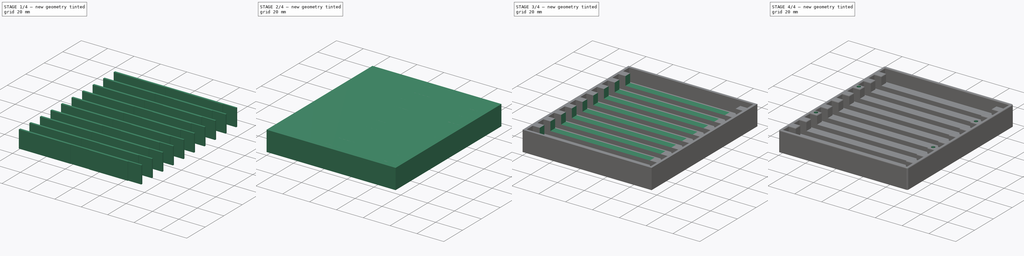
[diagram: build sequence overview — one tinted view per stage of 4, left to right]
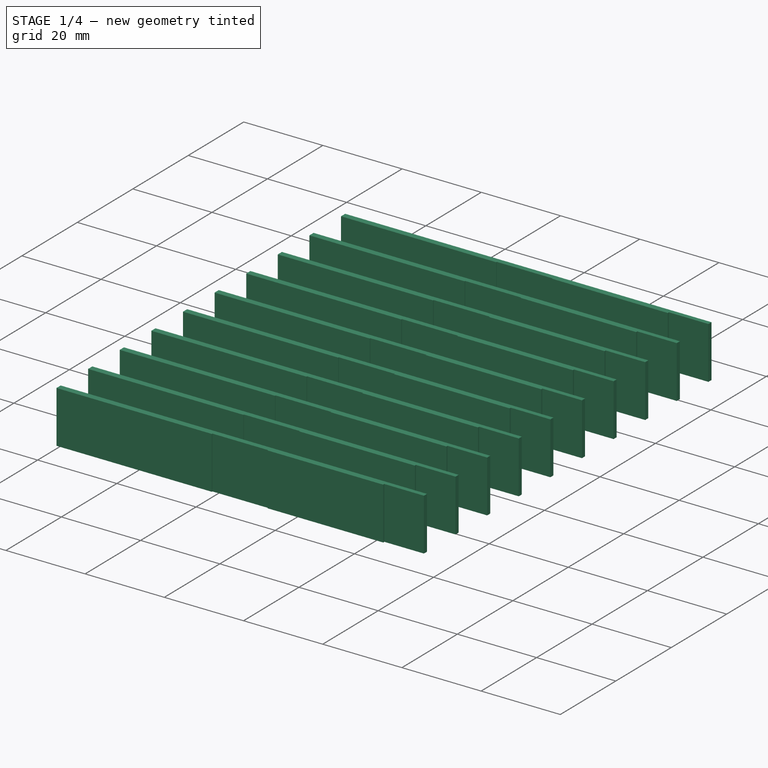
[diagram: stage 1 of 4 — iso view after this stage's code; geometry added in this stage tinted green]
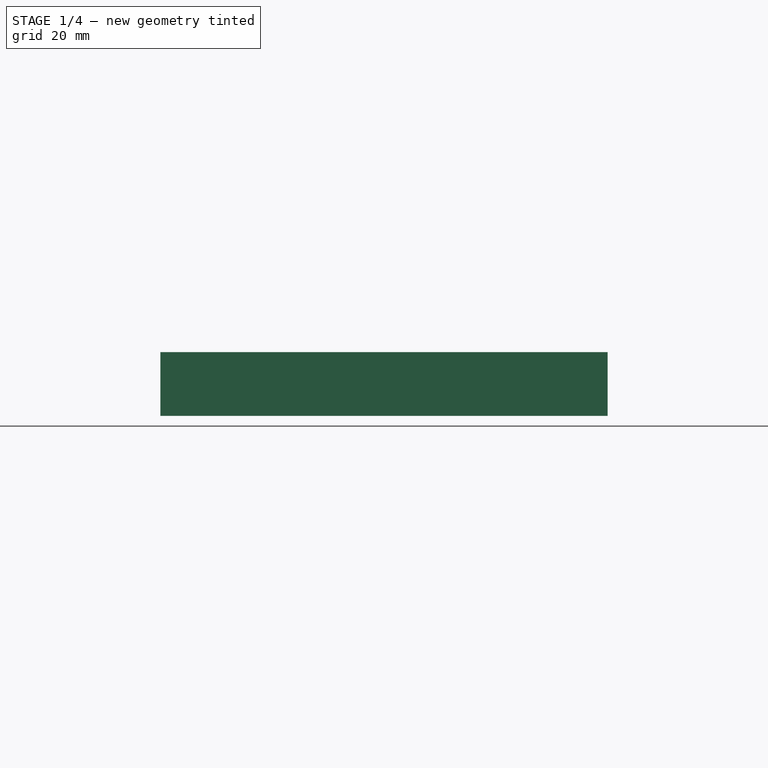
[diagram: stage 1 of 4 — front view after this stage's code; geometry added in this stage tinted green]
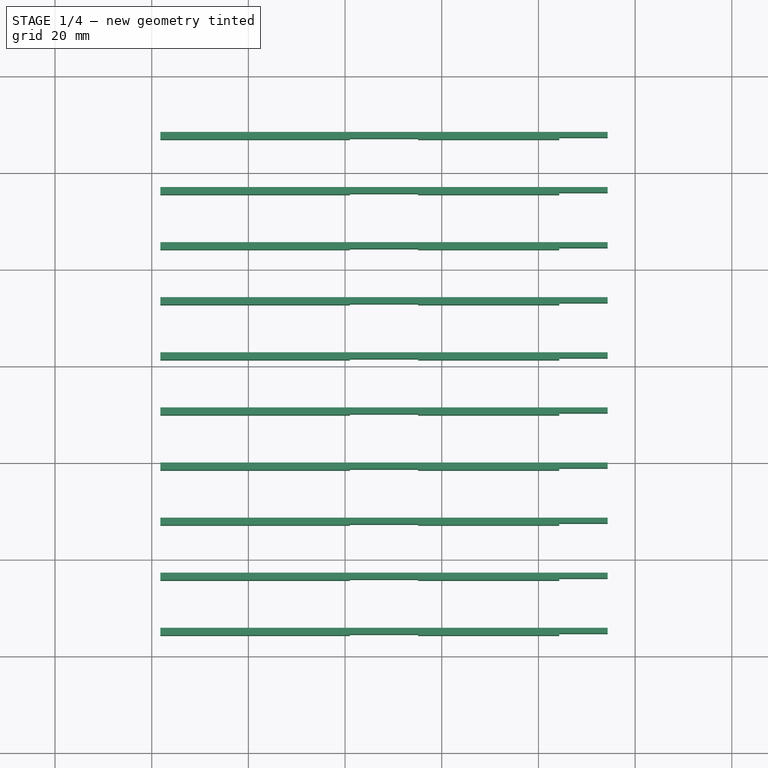
[diagram: stage 1 of 4 — top view after this stage's code; geometry added in this stage tinted green]
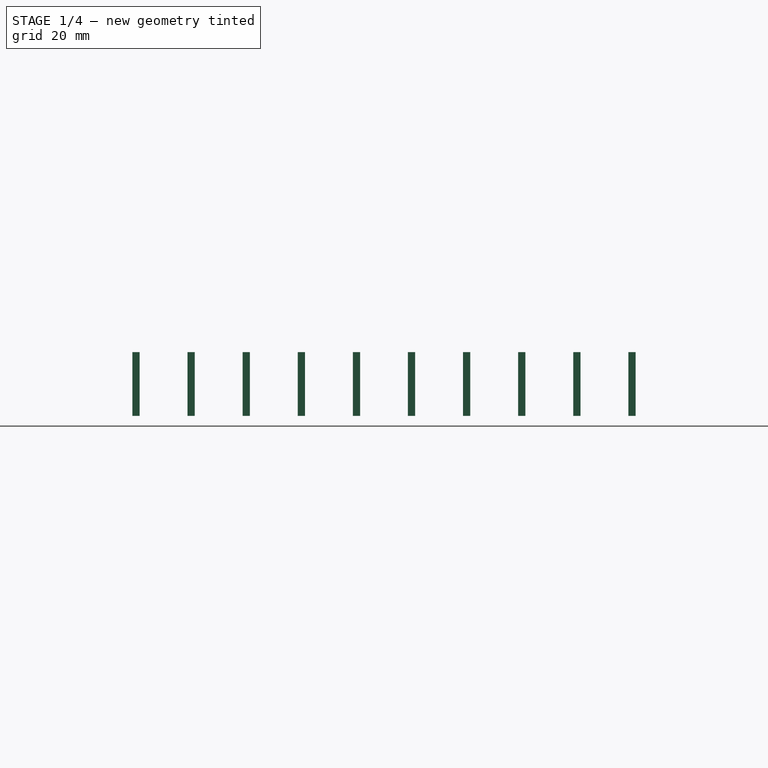
[diagram: stage 1 of 4 — right view after this stage's code; geometry added in this stage tinted green]
FCSTD DOCUMENT  (FreeCAD 0.19R)
Label: toradex-som-holder-10-slots-v2
License: All rights reserved
LicenseURL: http://en.wikipedia.org/wiki/All_rights_reserved
objects: Sketcher::SketchObject×7, Part::Extrusion×7, Part::Cut×5, Part::MultiFuse×1, Part::Fillet×1
note: 21 computed .brp shape members not serialized (recipe doc carries the construction recipe); baked Part::Feature solids carry a one-line shape summary decoded from their .brp

FEATURE [Sketcher::SketchObject] Sketch  label="BoxSketch"
  FullyConstrained = true
  sketch-geometry (4):
    g0: LineSegment StartX=0 StartY=0 StartZ=0 EndX=96.1 EndY=0 EndZ=0
    g1: LineSegment StartX=96.1 StartY=0 StartZ=0 EndX=96.1 EndY=112.6 EndZ=0
    g2: LineSegment StartX=96.1 StartY=112.6 StartZ=0 EndX=0 EndY=112.6 EndZ=0
    g3: LineSegment StartX=0 StartY=112.6 StartZ=0 EndX=0 EndY=0 EndZ=0
  constraints (11):
    c: Coincident(g0,g1)
    c: Coincident(g1,g2)
    c: Coincident(g2,g3)
    c: Coincident(g3,g0)
    c: Horizontal(g0)
    c: Horizontal(g2)
    c: Vertical(g1)
    c: Vertical(g3)
    c: Coincident(g0,g-1)
    c: Distance(g0) = 96.1  'BoxWidth'
    c: Distance(g3) = 112.6  'BoxHeight'
FEATURE [Sketcher::SketchObject] Sketch001  label="SoMSlitsSketch"
  FullyConstrained = true
  Placement = pos=(0,0,15) rot=(0,0,1;0rad)
  expr: Constraints[31] = .Constraints.BetweenGap
  expr: Constraints[11] = .Constraints.Wall
  expr: Constraints[13] = .Constraints.Wall
  expr: Constraints[32] = .Constraints.Slit
  expr: Constraints[95] = .Constraints.Wall
  expr: Constraints[33] = .Constraints.Slit
  expr: Constraints[35] = .Constraints.Wall
  expr: Constraints[37] = .Constraints.Wall
  expr: Constraints[94] = .Constraints.Wall
  expr: Constraints[113] = .Constraints.BetweenGap
  expr: Constraints[104] = .Constraints.Wall
  expr: Constraints[100] = .Constraints.Wall
  expr: Constraints[99] = .Constraints.Wall
  expr: Constraints[34] = .Constraints.Wall
  expr: Constraints[36] = .Constraints.Wall
  expr: Constraints[97] = .Constraints.Wall
  expr: Constraints[96] = .Constraints.Wall
  expr: Constraints[102] = .Constraints.Wall
  expr: Constraints[114] = .Constraints.BetweenGap
  expr: Constraints[115] = .Constraints.Slit
  expr: .Constraints.Wall = <<BoxCutSketch>>.Constraints.WallThickness
  expr: Constraints[121] = .Constraints.Slit
  expr: Constraints[103] = .Constraints.Wall
  expr: Constraints[105] = .Constraints.Wall
  expr: Constraints[106] = .Constraints.Wall
  expr: Constraints[107] = .Constraints.Wall
  expr: Constraints[108] = .Constraints.BetweenGap
  expr: Constraints[109] = .Constraints.BetweenGap
  expr: Constraints[111] = .Constraints.BetweenGap
  expr: Constraints[118] = .Constraints.Slit
  expr: Constraints[112] = .Constraints.BetweenGap
  expr: Constraints[117] = .Constraints.Slit
  expr: Constraints[101] = .Constraints.Wall
  expr: Constraints[119] = .Constraints.Slit
  expr: Constraints[116] = .Constraints.Slit
  expr: Constraints[10] = <<BoxSketch>>.Constraints.BoxWidth
  expr: Constraints[98] = .Constraints.Wall
  expr: Constraints[110] = .Constraints.BetweenGap
  expr: Constraints[120] = .Constraints.Slit
  sketch-geometry (41):
    g0: LineSegment StartX=1.8 StartY=1.8 StartZ=0 EndX=94.3 EndY=1.8 EndZ=0
    g1: LineSegment StartX=94.3 StartY=1.8 StartZ=0 EndX=94.3 EndY=8.2 EndZ=0
    g2: LineSegment StartX=94.3 StartY=8.2 StartZ=0 EndX=1.8 EndY=8.2 EndZ=0
    g3: LineSegment StartX=1.8 StartY=8.2 StartZ=0 EndX=1.8 EndY=1.8 EndZ=0
    g4: GeomPoint X=96.1 Y=0 Z=0
    g5: LineSegment StartX=1.8 StartY=13.2 StartZ=0 EndX=94.3 EndY=13.2 EndZ=0
    g6: LineSegment StartX=94.3 StartY=13.2 StartZ=0 EndX=94.3 EndY=19.6 EndZ=0
    g7: LineSegment StartX=94.3 StartY=19.6 StartZ=0 EndX=1.8 EndY=19.6 EndZ=0
    g8: LineSegment StartX=1.8 StartY=19.6 StartZ=0 EndX=1.8 EndY=13.2 EndZ=0
    g9: LineSegment StartX=1.8 StartY=31 StartZ=0 EndX=94.3 EndY=31 EndZ=0
    g10: LineSegment StartX=94.3 StartY=31 StartZ=0 EndX=94.3 EndY=24.6 EndZ=0
    g11: LineSegment StartX=94.3 StartY=24.6 StartZ=0 EndX=1.8 EndY=24.6 EndZ=0
    g12: LineSegment StartX=1.8 StartY=24.6 StartZ=0 EndX=1.8 EndY=31 EndZ=0
    g13: LineSegment StartX=1.8 StartY=42.4 StartZ=0 EndX=94.3 EndY=42.4 EndZ=0
    g14: LineSegment StartX=94.3 StartY=42.4 StartZ=0 EndX=94.3 EndY=36 EndZ=0
    g15: LineSegment StartX=94.3 StartY=36 StartZ=0 EndX=1.8 EndY=36 EndZ=0
    g16: LineSegment StartX=1.8 StartY=36 StartZ=0 EndX=1.8 EndY=42.4 EndZ=0
    g17: LineSegment StartX=1.8 StartY=53.8 StartZ=0 EndX=94.3 EndY=53.8 EndZ=0
    g18: LineSegment StartX=94.3 StartY=53.8 StartZ=0 EndX=94.3 EndY=47.4 EndZ=0
    g19: LineSegment StartX=94.3 StartY=47.4 StartZ=0 EndX=1.8 EndY=47.4 EndZ=0
    g20: LineSegment StartX=1.8 StartY=47.4 StartZ=0 EndX=1.8 EndY=53.8 EndZ=0
    g21: LineSegment StartX=1.8 StartY=65.2 StartZ=0 EndX=94.3 EndY=65.2 EndZ=0
    g22: LineSegment StartX=94.3 StartY=65.2 StartZ=0 EndX=94.3 EndY=58.8 EndZ=0
    g23: LineSegment StartX=94.3 StartY=58.8 StartZ=0 EndX=1.8 EndY=58.8 EndZ=0
    g24: LineSegment StartX=1.8 StartY=58.8 StartZ=0 EndX=1.8 EndY=65.2 EndZ=0
    g25: LineSegment StartX=1.8 StartY=76.6 StartZ=0 EndX=94.3 EndY=76.6 EndZ=0
    g26: LineSegment StartX=94.3 StartY=76.6 StartZ=0 EndX=94.3 EndY=70.2 EndZ=0
    g27: LineSegment StartX=94.3 StartY=70.2 StartZ=0 EndX=1.8 EndY=70.2 EndZ=0
    g28: LineSegment StartX=1.8 StartY=70.2 StartZ=0 EndX=1.8 EndY=76.6 EndZ=0
    g29: LineSegment StartX=1.8 StartY=88 StartZ=0 EndX=94.3 EndY=88 EndZ=0
    g30: LineSegment StartX=94.3 StartY=88 StartZ=0 EndX=94.3 EndY=81.6 EndZ=0
    g31: LineSegment StartX=94.3 StartY=81.6 StartZ=0 EndX=1.8 EndY=81.6 EndZ=0
    g32: LineSegment StartX=1.8 StartY=81.6 StartZ=0 EndX=1.8 EndY=88 EndZ=0
    g33: LineSegment StartX=1.8 StartY=99.4 StartZ=0 EndX=94.3 EndY=99.4 EndZ=0
    g34: LineSegment StartX=94.3 StartY=99.4 StartZ=0 EndX=94.3 EndY=93 EndZ=0
    g35: LineSegment StartX=94.3 StartY=93 StartZ=0 EndX=1.8 EndY=93 EndZ=0
    g36: LineSegment StartX=1.8 StartY=93 StartZ=0 EndX=1.8 EndY=99.4 EndZ=0
    g37: LineSegment StartX=1.8 StartY=110.8 StartZ=0 EndX=94.3 EndY=110.8 EndZ=0
    g38: LineSegment StartX=94.3 StartY=110.8 StartZ=0 EndX=94.3 EndY=104.4 EndZ=0
    g39: LineSegment StartX=94.3 StartY=104.4 StartZ=0 EndX=1.8 EndY=104.4 EndZ=0
    g40: LineSegment StartX=1.8 StartY=104.4 StartZ=0 EndX=1.8 EndY=110.8 EndZ=0
  constraints (122):
    c: Coincident(g0,g1)
    c: Coincident(g1,g2)
    c: Coincident(g2,g3)
    c: Coincident(g3,g0)
    c: Horizontal(g0)
    c: Horizontal(g2)
    c: Vertical(g1)
    c: Vertical(g3)
    c: DistanceX(g-1,g0) = 1.8  'Wall'
    c: PointOnObject(g4,g-1)
    c: Distance(g4,g-1) = 96.1
    c: DistanceX(g0,g4) = 1.8
    c: Distance(g3) = 6.4  'Slit'
    c: DistanceY(g-1,g0) = 1.8
    c: Coincident(g5,g6)
    c: Coincident(g6,g7)
    c: Coincident(g7,g8)
    c: Coincident(g8,g5)
    c: Horizontal(g5)
    c: Horizontal(g7)
    c: Vertical(g6)
    c: Vertical(g8)
    c: DistanceY(g2,g5) = 5  'BetweenGap'
    c: Coincident(g9,g10)
    c: Coincident(g10,g11)
    c: Coincident(g11,g12)
    c: Coincident(g12,g9)
    c: Horizontal(g9)
    c: Horizontal(g11)
    c: Vertical(g10)
    c: Vertical(g12)
    c: DistanceY(g7,g11) = 5
    c: Distance(g8) = 6.4
    c: Distance(g12) = 6.4
    c: DistanceX(g5,g4) = 1.8
    c: DistanceX(g10,g4) = 1.8
    c: DistanceX(g-1,g5) = 1.8
    c: DistanceX(g-1,g11) = 1.8
    c: Coincident(g13,g14)
    c: Coincident(g14,g15)
    c: Coincident(g15,g16)
    c: Coincident(g16,g13)
    c: Horizontal(g13)
    c: Horizontal(g15)
    c: Vertical(g14)
    c: Vertical(g16)
    c: Coincident(g17,g18)
    c: Coincident(g18,g19)
    c: Coincident(g19,g20)
    c: Coincident(g20,g17)
    c: Horizontal(g17)
    c: Horizontal(g19)
    c: Vertical(g18)
    c: Vertical(g20)
    c: Coincident(g21,g22)
    c: Coincident(g22,g23)
    c: Coincident(g23,g24)
    c: Coincident(g24,g21)
    c: Horizontal(g21)
    c: Horizontal(g23)
    c: Vertical(g22)
    c: Vertical(g24)
    c: Coincident(g25,g26)
    c: Coincident(g26,g27)
    c: Coincident(g27,g28)
    c: Coincident(g28,g25)
    c: Horizontal(g25)
    c: Horizontal(g27)
    c: Vertical(g26)
    c: Vertical(g28)
    c: Coincident(g29,g30)
    c: Coincident(g30,g31)
    c: Coincident(g31,g32)
    c: Coincident(g32,g29)
    c: Horizontal(g29)
    c: Horizontal(g31)
    c: Vertical(g30)
    c: Vertical(g32)
    c: Coincident(g33,g34)
    c: Coincident(g34,g35)
    c: Coincident(g35,g36)
    c: Coincident(g36,g33)
    c: Horizontal(g33)
    c: Horizontal(g35)
    c: Vertical(g34)
    c: Vertical(g36)
    c: Coincident(g37,g38)
    c: Coincident(g38,g39)
    c: Coincident(g39,g40)
    c: Coincident(g40,g37)
    c: Horizontal(g37)
    c: Horizontal(g39)
    c: Vertical(g38)
    c: Vertical(g40)
    c: DistanceX(g-1,g15) = 1.8
    c: DistanceX(g-1,g19) = 1.8
    c: DistanceX(g-1,g23) = 1.8
    c: DistanceX(g-1,g27) = 1.8
    c: DistanceX(g-1,g31) = 1.8
    c: DistanceX(g-1,g35) = 1.8
    c: DistanceX(g-1,g39) = 1.8
    c: DistanceX(g14,g4) = 1.8
    c: DistanceX(g18,g4) = 1.8
    c: DistanceX(g22,g4) = 1.8
    c: DistanceX(g26,g4) = 1.8
    c: DistanceX(g30,g4) = 1.8
    c: DistanceX(g34,g4) = 1.8
    c: DistanceX(g38,g4) = 1.8
    c: DistanceY(g9,g15) = 5
    c: DistanceY(g13,g19) = 5
    c: DistanceY(g17,g23) = 5
    c: DistanceY(g21,g27) = 5
    c: DistanceY(g25,g31) = 5
    c: DistanceY(g29,g35) = 5
    c: DistanceY(g33,g39) = 5
    c: Distance(g16) = 6.4
    c: Distance(g20) = 6.4
    c: Distance(g24) = 6.4
    c: Distance(g28) = 6.4
    c: Distance(g32) = 6.4
    c: Distance(g36) = 6.4
    c: Distance(g40) = 6.4
FEATURE [Sketcher::SketchObject] Sketch002  label="EdgeConnectorSlitsSketch"
  FullyConstrained = true
  Placement = pos=(0,0,15) rot=(0,0,1;0rad)
  expr: Constraints[106] = .Constraints.Wall
  expr: Constraints[105] = .Constraints.Wall
  expr: Constraints[102] = .Constraints.Wall
  expr: Constraints[34] = .Constraints.Wall
  expr: Constraints[99] = .Constraints.Wall
  expr: Constraints[36] = .Constraints.Wall
  expr: Constraints[96] = .Constraints.Wall
  expr: Constraints[97] = .Constraints.Wall
  expr: Constraints[35] = .Constraints.Wall
  expr: Constraints[33] = .Constraints.Wall
  expr: Constraints[32] = .Constraints.Slit
  expr: Constraints[95] = .Constraints.Wall
  expr: Constraints[93] = .Constraints.Wall
  expr: Constraints[11] = .Constraints.Wall
  expr: Constraints[111] = .Constraints.Slit
  expr: Constraints[104] = .Constraints.Wall
  expr: Constraints[94] = .Constraints.Wall
  expr: Constraints[113] = .Constraints.Slit
  expr: Constraints[107] = .Constraints.Slit
  expr: Constraints[108] = .Constraints.Slit
  expr: Constraints[109] = .Constraints.Slit
  expr: .Constraints.BetweenGap = Sketch001.Constraints.BetweenGap + Sketch001.Constraints.Slit
  expr: Constraints[31] = .Constraints.Slit
  expr: Constraints[100] = .Constraints.Wall
  expr: Constraints[118] = .Constraints.BetweenGap
  expr: Constraints[117] = .Constraints.BetweenGap
  expr: Constraints[112] = .Constraints.Slit
  expr: .Constraints.SlitSpacing = .Constraints.Wall + Sketch001.Constraints.Slit / 2 - .Constraints.Slit / 2
  expr: Constraints[101] = .Constraints.Wall
  expr: Constraints[119] = .Constraints.BetweenGap
  expr: Constraints[116] = .Constraints.BetweenGap
  expr: Constraints[120] = .Constraints.BetweenGap
  expr: Constraints[10] = <<BoxSketch>>.Constraints.BoxWidth
  expr: Constraints[98] = .Constraints.Wall
  expr: Constraints[110] = .Constraints.Slit
  expr: Constraints[103] = .Constraints.Wall
  expr: Constraints[121] = .Constraints.BetweenGap
  expr: .Constraints.Wall = <<BoxCutSketch>>.Constraints.WallThickness
  expr: Constraints[114] = .Constraints.BetweenGap
  expr: Constraints[115] = .Constraints.BetweenGap
  sketch-geometry (41):
    g0: LineSegment StartX=1.8 StartY=4.25 StartZ=0 EndX=94.3 EndY=4.25 EndZ=0
    g1: LineSegment StartX=94.3 StartY=4.25 StartZ=0 EndX=94.3 EndY=5.75 EndZ=0
    g2: LineSegment StartX=94.3 StartY=5.75 StartZ=0 EndX=1.8 EndY=5.75 EndZ=0
    g3: LineSegment StartX=1.8 StartY=5.75 StartZ=0 EndX=1.8 EndY=4.25 EndZ=0
    g4: GeomPoint X=96.1 Y=0 Z=0
    g5: LineSegment StartX=1.8 StartY=17.15 StartZ=0 EndX=94.3 EndY=17.15 EndZ=0
    g6: LineSegment StartX=94.3 StartY=17.15 StartZ=0 EndX=94.3 EndY=15.65 EndZ=0
    g7: LineSegment StartX=94.3 StartY=15.65 StartZ=0 EndX=1.8 EndY=15.65 EndZ=0
    g8: LineSegment StartX=1.8 StartY=15.65 StartZ=0 EndX=1.8 EndY=17.15 EndZ=0
    g9: LineSegment StartX=1.8 StartY=27.05 StartZ=0 EndX=94.3 EndY=27.05 EndZ=0
    g10: LineSegment StartX=94.3 StartY=27.05 StartZ=0 EndX=94.3 EndY=28.55 EndZ=0
    g11: LineSegment StartX=94.3 StartY=28.55 StartZ=0 EndX=1.8 EndY=28.55 EndZ=0
    g12: LineSegment StartX=1.8 StartY=28.55 StartZ=0 EndX=1.8 EndY=27.05 EndZ=0
    g13: LineSegment StartX=1.8 StartY=39.95 StartZ=0 EndX=94.3 EndY=39.95 EndZ=0
    g14: LineSegment StartX=94.3 StartY=39.95 StartZ=0 EndX=94.3 EndY=38.45 EndZ=0
    g15: LineSegment StartX=94.3 StartY=38.45 StartZ=0 EndX=1.8 EndY=38.45 EndZ=0
    g16: LineSegment StartX=1.8 StartY=38.45 StartZ=0 EndX=1.8 EndY=39.95 EndZ=0
    g17: LineSegment StartX=1.8 StartY=51.35 StartZ=0 EndX=94.3 EndY=51.35 EndZ=0
    g18: LineSegment StartX=94.3 StartY=51.35 StartZ=0 EndX=94.3 EndY=49.85 EndZ=0
    g19: LineSegment StartX=94.3 StartY=49.85 StartZ=0 EndX=1.8 EndY=49.85 EndZ=0
    g20: LineSegment StartX=1.8 StartY=49.85 StartZ=0 EndX=1.8 EndY=51.35 EndZ=0
    g21: LineSegment StartX=1.8 StartY=62.75 StartZ=0 EndX=94.3 EndY=62.75 EndZ=0
    g22: LineSegment StartX=94.3 StartY=62.75 StartZ=0 EndX=94.3 EndY=61.25 EndZ=0
    g23: LineSegment StartX=94.3 StartY=61.25 StartZ=0 EndX=1.8 EndY=61.25 EndZ=0
    g24: LineSegment StartX=1.8 StartY=61.25 StartZ=0 EndX=1.8 EndY=62.75 EndZ=0
    g25: LineSegment StartX=1.8 StartY=74.15 StartZ=0 EndX=94.3 EndY=74.15 EndZ=0
    g26: LineSegment StartX=94.3 StartY=74.15 StartZ=0 EndX=94.3 EndY=72.65 EndZ=0
    g27: LineSegment StartX=94.3 StartY=72.65 StartZ=0 EndX=1.8 EndY=72.65 EndZ=0
    g28: LineSegment StartX=1.8 StartY=72.65 StartZ=0 EndX=1.8 EndY=74.15 EndZ=0
    g29: LineSegment StartX=1.8 StartY=85.55 StartZ=0 EndX=94.3 EndY=85.55 EndZ=0
    g30: LineSegment StartX=94.3 StartY=85.55 StartZ=0 EndX=94.3 EndY=84.05 EndZ=0
    g31: LineSegment StartX=94.3 StartY=84.05 StartZ=0 EndX=1.8 EndY=84.05 EndZ=0
    g32: LineSegment StartX=1.8 StartY=84.05 StartZ=0 EndX=1.8 EndY=85.55 EndZ=0
    g33: LineSegment StartX=1.8 StartY=96.95 StartZ=0 EndX=94.3 EndY=96.95 EndZ=0
    g34: LineSegment StartX=94.3 StartY=96.95 StartZ=0 EndX=94.3 EndY=95.45 EndZ=0
    g35: LineSegment StartX=94.3 StartY=95.45 StartZ=0 EndX=1.8 EndY=95.45 EndZ=0
    g36: LineSegment StartX=1.8 StartY=95.45 StartZ=0 EndX=1.8 EndY=96.95 EndZ=0
    g37: LineSegment StartX=1.8 StartY=106.85 StartZ=0 EndX=94.3 EndY=106.85 EndZ=0
    g38: LineSegment StartX=94.3 StartY=106.85 StartZ=0 EndX=94.3 EndY=108.35 EndZ=0
    g39: LineSegment StartX=94.3 StartY=108.35 StartZ=0 EndX=1.8 EndY=108.35 EndZ=0
    g40: LineSegment StartX=1.8 StartY=108.35 StartZ=0 EndX=1.8 EndY=106.85 EndZ=0
  constraints (122):
    c: Coincident(g0,g1)
    c: Coincident(g1,g2)
    c: Coincident(g2,g3)
    c: Coincident(g3,g0)
    c: Horizontal(g0)
    c: Horizontal(g2)
    c: Vertical(g1)
    c: Vertical(g3)
    c: DistanceX(g-1,g0) = 1.8  'Wall'
    c: PointOnObject(g4,g-1)
    c: Distance(g4,g-1) = 96.1
    c: DistanceX(g0,g4) = 1.8
    c: Distance(g3) = 1.5  'Slit'
    c: DistanceY(g-1,g0) = 4.25  'SlitSpacing'
    c: Coincident(g5,g6)
    c: Coincident(g6,g7)
    c: Coincident(g7,g8)
    c: Coincident(g8,g5)
    c: Horizontal(g5)
    c: Horizontal(g7)
    c: Vertical(g6)
    c: Vertical(g8)
    c: DistanceY(g2,g5) = 11.4  'BetweenGap'
    c: Coincident(g9,g10)
    c: Coincident(g10,g11)
    c: Coincident(g11,g12)
    c: Coincident(g12,g9)
    c: Horizontal(g9)
    c: Horizontal(g11)
    c: Vertical(g10)
    c: Vertical(g12)
    c: Distance(g8) = 1.5
    c: Distance(g12) = 1.5
    c: DistanceX(g5,g4) = 1.8
    c: DistanceX(g10,g4) = 1.8
    c: DistanceX(g-1,g5) = 1.8
    c: DistanceX(g-1,g11) = 1.8
    c: Coincident(g13,g14)
    c: Coincident(g14,g15)
    c: Coincident(g15,g16)
    c: Coincident(g16,g13)
    c: Horizontal(g13)
    c: Horizontal(g15)
    c: Vertical(g14)
    c: Vertical(g16)
    c: Coincident(g17,g18)
    c: Coincident(g18,g19)
    c: Coincident(g19,g20)
    c: Coincident(g20,g17)
    c: Horizontal(g17)
    c: Horizontal(g19)
    c: Vertical(g18)
    c: Vertical(g20)
    c: Coincident(g21,g22)
    c: Coincident(g22,g23)
    c: Coincident(g23,g24)
    c: Coincident(g24,g21)
    c: Horizontal(g21)
    c: Horizontal(g23)
    c: Vertical(g22)
    c: Vertical(g24)
    c: Coincident(g25,g26)
    c: Coincident(g26,g27)
    c: Coincident(g27,g28)
    c: Coincident(g28,g25)
    c: Horizontal(g25)
    c: Horizontal(g27)
    c: Vertical(g26)
    c: Vertical(g28)
    c: Coincident(g29,g30)
    c: Coincident(g30,g31)
    c: Coincident(g31,g32)
    c: Coincident(g32,g29)
    c: Horizontal(g29)
    c: Horizontal(g31)
    c: Vertical(g30)
    c: Vertical(g32)
    c: Coincident(g33,g34)
    c: Coincident(g34,g35)
    c: Coincident(g35,g36)
    c: Coincident(g36,g33)
    c: Horizontal(g33)
    c: Horizontal(g35)
    c: Vertical(g34)
    c: Vertical(g36)
    c: Coincident(g37,g38)
    c: Coincident(g38,g39)
    c: Coincident(g39,g40)
    c: Coincident(g40,g37)
    c: Horizontal(g37)
    c: Horizontal(g39)
    c: Vertical(g38)
    c: Vertical(g40)
    c: DistanceX(g-1,g15) = 1.8
    c: DistanceX(g-1,g19) = 1.8
    c: DistanceX(g-1,g23) = 1.8
    c: DistanceX(g-1,g27) = 1.8
    c: DistanceX(g-1,g31) = 1.8
    c: DistanceX(g-1,g35) = 1.8
    c: DistanceX(g-1,g39) = 1.8
    c: DistanceX(g14,g4) = 1.8
    c: DistanceX(g18,g4) = 1.8
    c: DistanceX(g22,g4) = 1.8
    c: DistanceX(g26,g4) = 1.8
    c: DistanceX(g30,g4) = 1.8
    c: DistanceX(g34,g4) = 1.8
    c: DistanceX(g38,g4) = 1.8
    c: Distance(g16) = 1.5
    c: Distance(g20) = 1.5
    c: Distance(g24) = 1.5
    c: Distance(g28) = 1.5
    c: Distance(g32) = 1.5
    c: Distance(g36) = 1.5
    c: Distance(g40) = 1.5
    c: DistanceY(g5,g11) = 11.4
    c: DistanceY(g11,g13) = 11.4
    c: DistanceY(g13,g17) = 11.4
    c: DistanceY(g17,g21) = 11.4
    c: DistanceY(g21,g25) = 11.4
    c: DistanceY(g25,g29) = 11.4
    c: DistanceY(g29,g33) = 11.4
    c: DistanceY(g33,g39) = 11.4
FEATURE [Sketcher::SketchObject] Sketch004  label="BoxCutSketch"
  FullyConstrained = true
  Placement = pos=(0,0,15) rot=(0,0,1;0rad)
  expr: Constraints[15] = .Constraints.WallThickness
  expr: Constraints[14] = <<BoxSketch>>.Constraints.BoxHeight
  expr: Constraints[12] = .Constraints.WallCrennelationThickness
  expr: Constraints[11] = <<BoxSketch>>.Constraints.BoxWidth
  sketch-geometry (6):
    g0: LineSegment StartX=7 StartY=1.8 StartZ=0 EndX=89.1 EndY=1.8 EndZ=0
    g1: LineSegment StartX=89.1 StartY=1.8 StartZ=0 EndX=89.1 EndY=110.8 EndZ=0
    g2: LineSegment StartX=89.1 StartY=110.8 StartZ=0 EndX=7 EndY=110.8 EndZ=0
    g3: LineSegment StartX=7 StartY=110.8 StartZ=0 EndX=7 EndY=1.8 EndZ=0
    g4: GeomPoint X=96.1 Y=0 Z=0
    g5: GeomPoint X=0 Y=112.6 Z=0
  constraints (16):
    c: Coincident(g0,g1)
    c: Coincident(g1,g2)
    c: Coincident(g2,g3)
    c: Coincident(g3,g0)
    c: Horizontal(g0)
    c: Horizontal(g2)
    c: Vertical(g1)
    c: Vertical(g3)
    c: DistanceX(g-1,g0) = 7  'WallCrennelationThickness'
    c: DistanceY(g-1,g0) = 1.8  'WallThickness'
    c: PointOnObject(g4,g-1)
    c: Distance(g4,g-1) = 96.1
    c: DistanceX(g0,g4) = 7
    c: PointOnObject(g5,g-2)
    c: Distance(g5,g-1) = 112.6
    c: DistanceY(g2,g5) = 1.8
FEATURE [Sketcher::SketchObject] Sketch005  label="SoMChamfer"
  FullyConstrained = true
  expr: Constraints[11] = <<BoxCutSketch>>.Constraints.WallThickness
  sketch-geometry (4):
    g0: LineSegment StartX=41 StartY=1.8 StartZ=0 EndX=41.8 EndY=1.8 EndZ=0
    g1: LineSegment StartX=41.8 StartY=1.8 StartZ=0 EndX=41.8 EndY=110.8 EndZ=0
    g2: LineSegment StartX=41.8 StartY=110.8 StartZ=0 EndX=41 EndY=110.8 EndZ=0
    g3: LineSegment StartX=41 StartY=110.8 StartZ=0 EndX=41 EndY=1.8 EndZ=0
  constraints (12):
    c: Coincident(g0,g1)
    c: Coincident(g1,g2)
    c: Coincident(g2,g3)
    c: Coincident(g3,g0)
    c: Horizontal(g0)
    c: Horizontal(g2)
    c: Vertical(g1)
    c: Vertical(g3)
    c: Distance(g0) = 0.8  'ChamferWidth'
    c: Distance(g3) = 109  'BoxHeight'
    c: DistanceX(g-1,g0) = 41  'Chamfer'
    c: DistanceY(g-1,g0) = 1.8
FEATURE [Sketcher::SketchObject] Sketch006  label="StackHolesSketch"
  FullyConstrained = true
  expr: Constraints[11] = .Constraints.HoleClearanceWidth
  expr: Constraints[14] = .Constraints.HoleClearanceHeight
  expr: Constraints[9] = .Constraints.HoleClearanceWidth
  expr: Constraints[15] = .Constraints.HoleClearanceHeight
  expr: .Constraints.HoleClearanceWidth = <<BoxCutSketch>>.Constraints.WallThickness / 2 + <<BoxCutSketch>>.Constraints.WallCrennelationThickness / 2
  expr: .Constraints.HoleClearanceHeight = <<BoxCutSketch>>.Constraints.WallThickness + 5 * Sketch001.Constraints.BetweenGap / 2 + 3 * Sketch001.Constraints.Slit
  expr: Constraints[13] = .Constraints.HoleClearanceHeight
  expr: Constraints[7] = <<BoxSketch>>.Constraints.BoxHeight
  expr: Constraints[3] = .Constraints.M25Hole
  expr: Constraints[10] = .Constraints.HoleClearanceWidth
  expr: Constraints[5] = <<BoxSketch>>.Constraints.BoxWidth
  expr: Constraints[2] = .Constraints.M25Hole
  expr: Constraints[1] = .Constraints.M25Hole
  sketch-geometry (6):
    g0: Circle CenterX=4.4 CenterY=33.5 CenterZ=0 NormalX=0 NormalY=0 NormalZ=1 AngleXU=0 Radius=1.35
    g1: Circle CenterX=91.7 CenterY=33.5 CenterZ=0 NormalX=0 NormalY=0 NormalZ=1 AngleXU=0 Radius=1.35
    g2: Circle CenterX=91.7 CenterY=79.1 CenterZ=0 NormalX=0 NormalY=0 NormalZ=1 AngleXU=0 Radius=1.35
    g3: Circle CenterX=4.4 CenterY=79.1 CenterZ=0 NormalX=0 NormalY=0 NormalZ=1 AngleXU=0 Radius=1.35
    g4: GeomPoint X=96.1 Y=0 Z=0
    g5: GeomPoint X=0 Y=112.6 Z=0
  constraints (16):
    c: Diameter(g0) = 2.7  'M25Hole'
    c: Diameter(g1) = 2.7
    c: Diameter(g2) = 2.7
    c: Diameter(g3) = 2.7
    c: PointOnObject(g4,g-1)
    c: Distance(g4,g-1) = 96.1
    c: PointOnObject(g5,g-2)
    c: Distance(g5,g-1) = 112.6
    c: DistanceX(g-1,g0) = 4.4  'HoleClearanceWidth'
    c: DistanceX(g-1,g3) = 4.4
    c: DistanceX(g1,g4) = 4.4
    c: DistanceX(g2,g4) = 4.4
    c: DistanceY(g-1,g0) = 33.5  'HoleClearanceHeight'
    c: DistanceY(g4,g1) = 33.5
    c: DistanceY(g3,g5) = 33.5
    c: DistanceY(g2,g5) = 33.5
FEATURE [Sketcher::SketchObject] Sketch003  label="EdgeClickSketch"
  FullyConstrained = true
  Placement = pos=(0,0,15) rot=(0,0,1;0rad)
  expr: Constraints[115] = .Constraints.SpaceBetweenSlits
  expr: Constraints[114] = .Constraints.SpaceBetweenSlits
  expr: Constraints[218] = .Constraints.ColibriSlitWidth
  expr: Constraints[33] = .Constraints.ChamferDistance
  expr: Constraints[102] = .Constraints.ChamferDistance
  expr: Constraints[226] = .Constraints.ColibriSlitHeight
  expr: Constraints[29] = .Constraints.ApalisVerdinSlit
  expr: Constraints[205] = .Constraints.WallThickness
  expr: Constraints[217] = .Constraints.ColibriSlitWidth
  expr: Constraints[234] = .Constraints.SpaceBetweenSlits
  expr: Constraints[227] = .Constraints.ColibriSlitHeight
  expr: Constraints[106] = .Constraints.ApalisVerdinSlit
  expr: Constraints[228] = .Constraints.ColibriSlitHeight
  expr: Constraints[30] = .Constraints.ApalisVerdinSlit
  expr: Constraints[230] = .Constraints.ColibriSlitHeight
  expr: Constraints[119] = .Constraints.SpaceBetweenSlits
  expr: .Constraints.WallToSlit = <<BoxCutSketch>>.Constraints.WallThickness + Sketch001.Constraints.Slit / 2 - <<EdgeConnectorSlitsSketch>>.Constraints.Slit / 2
  expr: Constraints[118] = .Constraints.SpaceBetweenSlits
  expr: Constraints[232] = .Constraints.WallToSlit
  expr: Constraints[10] = <<BoxSketch>>.Constraints.BoxWidth
  expr: Constraints[98] = .Constraints.ChamferDistance
  expr: .Constraints.SpaceBetweenSlits = Sketch001.Constraints.BetweenGap + Sketch001.Constraints.Slit
  expr: Constraints[235] = .Constraints.SpaceBetweenSlits
  expr: Constraints[110] = .Constraints.ApalisVerdinSlit
  expr: Constraints[233] = .Constraints.SpaceBetweenSlits
  expr: Constraints[108] = .Constraints.ApalisVerdinSlit
  expr: .Constraints.WallThickness = <<BoxCutSketch>>.Constraints.WallThickness
  expr: Constraints[223] = .Constraints.ColibriSlitHeight
  expr: Constraints[203] = .Constraints.WallThickness
  expr: Constraints[107] = .Constraints.ApalisVerdinSlit
  expr: Constraints[238] = .Constraints.SpaceBetweenSlits
  expr: Constraints[215] = .Constraints.ColibriSlitWidth
  expr: Constraints[220] = .Constraints.ColibriSlitWidth
  expr: Constraints[221] = .Constraints.ColibriSlitWidth
  expr: Constraints[206] = .Constraints.WallThickness
  expr: Constraints[213] = .Constraints.ColibriSlitWidth
  expr: Constraints[237] = .Constraints.SpaceBetweenSlits
  expr: Constraints[111] = .Constraints.ApalisVerdinSlit
  expr: Constraints[229] = .Constraints.ColibriSlitHeight
  expr: Constraints[209] = .Constraints.WallThickness
  expr: Constraints[219] = .Constraints.ColibriSlitWidth
  expr: Constraints[204] = .Constraints.WallThickness
  expr: Constraints[214] = .Constraints.ColibriSlitWidth
  expr: Constraints[117] = .Constraints.SpaceBetweenSlits
  expr: Constraints[216] = .Constraints.ColibriSlitWidth
  expr: Constraints[225] = .Constraints.ColibriSlitHeight
  expr: Constraints[239] = .Constraints.SpaceBetweenSlits
  expr: Constraints[210] = .Constraints.WallThickness
  expr: Constraints[231] = .Constraints.ColibriSlitHeight
  expr: Constraints[120] = .Constraints.SpaceBetweenSlits
  expr: Constraints[103] = .Constraints.ChamferDistance
  expr: Constraints[121] = .Constraints.SpaceBetweenSlits
  expr: Constraints[211] = .Constraints.WallThickness
  expr: Constraints[94] = .Constraints.ChamferDistance
  expr: Constraints[104] = .Constraints.ChamferDistance
  expr: Constraints[109] = .Constraints.ApalisVerdinSlit
  expr: .Constraints.ChamferDistance = <<SoMChamfer>>.Constraints.Chamfer
  expr: Constraints[99] = .Constraints.ChamferDistance
  expr: Constraints[34] = .Constraints.ChamferDistance
  expr: Constraints[97] = .Constraints.ChamferDistance
  expr: Constraints[96] = .Constraints.ChamferDistance
  expr: Constraints[208] = .Constraints.WallThickness
  expr: Constraints[236] = .Constraints.SpaceBetweenSlits
  expr: Constraints[32] = .Constraints.ChamferDistance
  expr: Constraints[95] = .Constraints.ChamferDistance
  expr: Constraints[224] = .Constraints.ColibriSlitHeight
  expr: Constraints[100] = .Constraints.ChamferDistance
  expr: Constraints[105] = .Constraints.ApalisVerdinSlit
  expr: Constraints[240] = .Constraints.SpaceBetweenSlits
  expr: Constraints[101] = .Constraints.ChamferDistance
  expr: Constraints[31] = .Constraints.ChamferDistance
  expr: Constraints[11] = .Constraints.ChamferDistance
  expr: Constraints[241] = .Constraints.SpaceBetweenSlits
  expr: Constraints[93] = .Constraints.ChamferDistance
  expr: Constraints[207] = .Constraints.WallThickness
  expr: Constraints[91] = .Constraints.ChamferDistance
  expr: Constraints[92] = .Constraints.ChamferDistance
  expr: Constraints[116] = .Constraints.SpaceBetweenSlits
  sketch-geometry (81):
    g0: LineSegment StartX=41 StartY=4.45 StartZ=0 EndX=55.1 EndY=4.45 EndZ=0
    g1: LineSegment StartX=55.1 StartY=4.45 StartZ=0 EndX=55.1 EndY=4.25 EndZ=0
    g2: LineSegment StartX=55.1 StartY=4.25 StartZ=0 EndX=41 EndY=4.25 EndZ=0
    g3: LineSegment StartX=41 StartY=4.25 StartZ=0 EndX=41 EndY=4.45 EndZ=0
    g4: GeomPoint X=96.1 Y=0 Z=0
    g5: LineSegment StartX=41 StartY=15.65 StartZ=0 EndX=55.1 EndY=15.65 EndZ=0
    g6: LineSegment StartX=55.1 StartY=15.65 StartZ=0 EndX=55.1 EndY=15.85 EndZ=0
    g7: LineSegment StartX=55.1 StartY=15.85 StartZ=0 EndX=41 EndY=15.85 EndZ=0
    g8: LineSegment StartX=41 StartY=15.85 StartZ=0 EndX=41 EndY=15.65 EndZ=0
    g9: LineSegment StartX=41 StartY=27.25 StartZ=0 EndX=55.1 EndY=27.25 EndZ=0
    g10: LineSegment StartX=55.1 StartY=27.25 StartZ=0 EndX=55.1 EndY=27.05 EndZ=0
    g11: LineSegment StartX=55.1 StartY=27.05 StartZ=0 EndX=41 EndY=27.05 EndZ=0
    g12: LineSegment StartX=41 StartY=27.05 StartZ=0 EndX=41 EndY=27.25 EndZ=0
    g13: LineSegment StartX=41 StartY=38.65 StartZ=0 EndX=55.1 EndY=38.65 EndZ=0
    g14: LineSegment StartX=55.1 StartY=38.65 StartZ=0 EndX=55.1 EndY=38.45 EndZ=0
    g15: LineSegment StartX=55.1 StartY=38.45 StartZ=0 EndX=41 EndY=38.45 EndZ=0
    g16: LineSegment StartX=41 StartY=38.45 StartZ=0 EndX=41 EndY=38.65 EndZ=0
    g17: LineSegment StartX=41 StartY=50.05 StartZ=0 EndX=55.1 EndY=50.05 EndZ=0
    g18: LineSegment StartX=55.1 StartY=50.05 StartZ=0 EndX=55.1 EndY=49.85 EndZ=0
    g19: LineSegment StartX=55.1 StartY=49.85 StartZ=0 EndX=41 EndY=49.85 EndZ=0
    g20: LineSegment StartX=41 StartY=49.85 StartZ=0 EndX=41 EndY=50.05 EndZ=0
    g21: LineSegment StartX=41 StartY=61.45 StartZ=0 EndX=55.1 EndY=61.45 EndZ=0
    g22: LineSegment StartX=55.1 StartY=61.45 StartZ=0 EndX=55.1 EndY=61.25 EndZ=0
    g23: LineSegment StartX=55.1 StartY=61.25 StartZ=0 EndX=41 EndY=61.25 EndZ=0
    g24: LineSegment StartX=41 StartY=61.25 StartZ=0 EndX=41 EndY=61.45 EndZ=0
    g25: LineSegment StartX=41 StartY=72.85 StartZ=0 EndX=55.1 EndY=72.85 EndZ=0
    g26: LineSegment StartX=55.1 StartY=72.85 StartZ=0 EndX=55.1 EndY=72.65 EndZ=0
    g27: LineSegment StartX=55.1 StartY=72.65 StartZ=0 EndX=41 EndY=72.65 EndZ=0
    g28: LineSegment StartX=41 StartY=72.65 StartZ=0 EndX=41 EndY=72.85 EndZ=0
    g29: LineSegment StartX=41 StartY=84.25 StartZ=0 EndX=55.1 EndY=84.25 EndZ=0
    g30: LineSegment StartX=55.1 StartY=84.25 StartZ=0 EndX=55.1 EndY=84.05 EndZ=0
    g31: LineSegment StartX=55.1 StartY=84.05 StartZ=0 EndX=41 EndY=84.05 EndZ=0
    g32: LineSegment StartX=41 StartY=84.05 StartZ=0 EndX=41 EndY=84.25 EndZ=0
    g33: LineSegment StartX=41 StartY=95.65 StartZ=0 EndX=55.1 EndY=95.65 EndZ=0
    g34: LineSegment StartX=55.1 StartY=95.65 StartZ=0 EndX=55.1 EndY=95.45 EndZ=0
    g35: LineSegment StartX=55.1 StartY=95.45 StartZ=0 EndX=41 EndY=95.45 EndZ=0
    g36: LineSegment StartX=41 StartY=95.45 StartZ=0 EndX=41 EndY=95.65 EndZ=0
    g37: LineSegment StartX=41 StartY=107.05 StartZ=0 EndX=55.1 EndY=107.05 EndZ=0
    g38: LineSegment StartX=55.1 StartY=107.05 StartZ=0 EndX=55.1 EndY=106.85 EndZ=0
    g39: LineSegment StartX=55.1 StartY=106.85 StartZ=0 EndX=41 EndY=106.85 EndZ=0
    g40: LineSegment StartX=41 StartY=106.85 StartZ=0 EndX=41 EndY=107.05 EndZ=0
    g41: LineSegment StartX=94.3 StartY=4.25 StartZ=0 EndX=84.3 EndY=4.25 EndZ=0
    g42: LineSegment StartX=84.3 StartY=4.25 StartZ=0 EndX=84.3 EndY=4.65 EndZ=0
    g43: LineSegment StartX=84.3 StartY=4.65 StartZ=0 EndX=94.3 EndY=4.65 EndZ=0
    g44: LineSegment StartX=94.3 StartY=4.65 StartZ=0 EndX=94.3 EndY=4.25 EndZ=0
    g45: LineSegment StartX=94.3 StartY=15.65 StartZ=0 EndX=84.3 EndY=15.65 EndZ=0
    g46: LineSegment StartX=84.3 StartY=15.65 StartZ=0 EndX=84.3 EndY=16.05 EndZ=0
    g47: LineSegment StartX=84.3 StartY=16.05 StartZ=0 EndX=94.3 EndY=16.05 EndZ=0
    g48: LineSegment StartX=94.3 StartY=16.05 StartZ=0 EndX=94.3 EndY=15.65 EndZ=0
    g49: LineSegment StartX=94.3 StartY=27.05 StartZ=0 EndX=84.3 EndY=27.05 EndZ=0
    g50: LineSegment StartX=84.3 StartY=27.05 StartZ=0 EndX=84.3 EndY=27.45 EndZ=0
    g51: LineSegment StartX=84.3 StartY=27.45 StartZ=0 EndX=94.3 EndY=27.45 EndZ=0
    g52: LineSegment StartX=94.3 StartY=27.45 StartZ=0 EndX=94.3 EndY=27.05 EndZ=0
    g53: LineSegment StartX=94.3 StartY=38.45 StartZ=0 EndX=84.3 EndY=38.45 EndZ=0
    g54: LineSegment StartX=84.3 StartY=38.45 StartZ=0 EndX=84.3 EndY=38.85 EndZ=0
    g55: LineSegment StartX=84.3 StartY=38.85 StartZ=0 EndX=94.3 EndY=38.85 EndZ=0
    g56: LineSegment StartX=94.3 StartY=38.85 StartZ=0 EndX=94.3 EndY=38.45 EndZ=0
    g57: LineSegment StartX=94.3 StartY=49.85 StartZ=0 EndX=84.3 EndY=49.85 EndZ=0
    g58: LineSegment StartX=84.3 StartY=49.85 StartZ=0 EndX=84.3 EndY=50.25 EndZ=0
    g59: LineSegment StartX=84.3 StartY=50.25 StartZ=0 EndX=94.3 EndY=50.25 EndZ=0
    g60: LineSegment StartX=94.3 StartY=50.25 StartZ=0 EndX=94.3 EndY=49.85 EndZ=0
    g61: LineSegment StartX=94.3 StartY=61.25 StartZ=0 EndX=84.3 EndY=61.25 EndZ=0
    g62: LineSegment StartX=84.3 StartY=61.25 StartZ=0 EndX=84.3 EndY=61.65 EndZ=0
    g63: LineSegment StartX=84.3 StartY=61.65 StartZ=0 EndX=94.3 EndY=61.65 EndZ=0
    g64: LineSegment StartX=94.3 StartY=61.65 StartZ=0 EndX=94.3 EndY=61.25 EndZ=0
    g65: LineSegment StartX=94.3 StartY=72.65 StartZ=0 EndX=84.3 EndY=72.65 EndZ=0
    g66: LineSegment StartX=84.3 StartY=72.65 StartZ=0 EndX=84.3 EndY=73.05 EndZ=0
    g67: LineSegment StartX=84.3 StartY=73.05 StartZ=0 EndX=94.3 EndY=73.05 EndZ=0
    g68: LineSegment StartX=94.3 StartY=73.05 StartZ=0 EndX=94.3 EndY=72.65 EndZ=0
    g69: LineSegment StartX=94.3 StartY=84.05 StartZ=0 EndX=84.3 EndY=84.05 EndZ=0
    g70: LineSegment StartX=84.3 StartY=84.05 StartZ=0 EndX=84.3 EndY=84.45 EndZ=0
    g71: LineSegment StartX=84.3 StartY=84.45 StartZ=0 EndX=94.3 EndY=84.45 EndZ=0
    g72: LineSegment StartX=94.3 StartY=84.45 StartZ=0 EndX=94.3 EndY=84.05 EndZ=0
    g73: LineSegment StartX=94.3 StartY=95.45 StartZ=0 EndX=84.3 EndY=95.45 EndZ=0
    g74: LineSegment StartX=84.3 StartY=95.45 StartZ=0 EndX=84.3 EndY=95.85 EndZ=0
    g75: LineSegment StartX=84.3 StartY=95.85 StartZ=0 EndX=94.3 EndY=95.85 EndZ=0
    g76: LineSegment StartX=94.3 StartY=95.85 StartZ=0 EndX=94.3 EndY=95.45 EndZ=0
    g77: LineSegment StartX=94.3 StartY=106.85 StartZ=0 EndX=84.3 EndY=106.85 EndZ=0
    g78: LineSegment StartX=84.3 StartY=106.85 StartZ=0 EndX=84.3 EndY=107.25 EndZ=0
    g79: LineSegment StartX=84.3 StartY=107.25 StartZ=0 EndX=94.3 EndY=107.25 EndZ=0
    g80: LineSegment StartX=94.3 StartY=107.25 StartZ=0 EndX=94.3 EndY=106.85 EndZ=0
  constraints (242):
    c: Coincident(g0,g1)
    c: Coincident(g1,g2)
    c: Coincident(g2,g3)
    c: Coincident(g3,g0)
    c: Horizontal(g0)
    c: Horizontal(g2)
    c: Vertical(g1)
    c: Vertical(g3)
    c: DistanceX(g-1,g0) = 41  'ChamferDistance'
    c: PointOnObject(g4,g-1)
    c: Distance(g4,g-1) = 96.1
    c: DistanceX(g0,g4) = 41
    c: Distance(g3) = 0.2  'ApalisVerdinSlit'
    c: Coincident(g5,g6)
    c: Coincident(g6,g7)
    c: Coincident(g7,g8)
    c: Coincident(g8,g5)
    c: Horizontal(g5)
    c: Horizontal(g7)
    c: Vertical(g6)
    c: Vertical(g8)
    c: Coincident(g9,g10)
    c: Coincident(g10,g11)
    c: Coincident(g11,g12)
    c: Coincident(g12,g9)
    c: Horizontal(g9)
    c: Horizontal(g11)
    c: Vertical(g10)
    c: Vertical(g12)
    c: Distance(g8) = 0.2
    c: Distance(g12) = 0.2
    c: DistanceX(g5,g4) = 41
    c: DistanceX(g10,g4) = 41
    c: DistanceX(g-1,g5) = 41
    c: DistanceX(g-1,g11) = 41
    c: Coincident(g13,g14)
    c: Coincident(g14,g15)
    c: Coincident(g15,g16)
    c: Coincident(g16,g13)
    c: Horizontal(g13)
    c: Horizontal(g15)
    c: Vertical(g14)
    c: Vertical(g16)
    c: Coincident(g17,g18)
    c: Coincident(g18,g19)
    c: Coincident(g19,g20)
    c: Coincident(g20,g17)
    c: Horizontal(g17)
    c: Horizontal(g19)
    c: Vertical(g18)
    c: Vertical(g20)
    c: Coincident(g21,g22)
    c: Coincident(g22,g23)
    c: Coincident(g23,g24)
    c: Coincident(g24,g21)
    c: Horizontal(g21)
    c: Horizontal(g23)
    c: Vertical(g22)
    c: Vertical(g24)
    c: Coincident(g25,g26)
    c: Coincident(g26,g27)
    c: Coincident(g27,g28)
    c: Coincident(g28,g25)
    c: Horizontal(g25)
    c: Horizontal(g27)
    c: Vertical(g26)
    c: Vertical(g28)
    c: Coincident(g29,g30)
    c: Coincident(g30,g31)
    c: Coincident(g31,g32)
    c: Coincident(g32,g29)
    c: Horizontal(g29)
    c: Horizontal(g31)
    c: Vertical(g30)
    c: Vertical(g32)
    c: Coincident(g33,g34)
    c: Coincident(g34,g35)
    c: Coincident(g35,g36)
    c: Coincident(g36,g33)
    c: Horizontal(g33)
    c: Horizontal(g35)
    c: Vertical(g34)
    c: Vertical(g36)
    c: Coincident(g37,g38)
    c: Coincident(g38,g39)
    c: Coincident(g39,g40)
    c: Coincident(g40,g37)
    c: Horizontal(g37)
    c: Horizontal(g39)
    c: Vertical(g38)
    c: Vertical(g40)
    c: DistanceX(g-1,g15) = 41
    c: DistanceX(g-1,g19) = 41
    c: DistanceX(g-1,g23) = 41
    c: DistanceX(g-1,g27) = 41
    c: DistanceX(g-1,g31) = 41
    c: DistanceX(g-1,g35) = 41
    c: DistanceX(g-1,g39) = 41
    c: DistanceX(g14,g4) = 41
    c: DistanceX(g18,g4) = 41
    c: DistanceX(g22,g4) = 41
    c: DistanceX(g26,g4) = 41
    c: DistanceX(g30,g4) = 41
    c: DistanceX(g34,g4) = 41
    c: DistanceX(g38,g4) = 41
    c: Distance(g16) = 0.2
    c: Distance(g20) = 0.2
    c: Distance(g24) = 0.2
    c: Distance(g28) = 0.2
    c: Distance(g32) = 0.2
    c: Distance(g36) = 0.2
    c: Distance(g40) = 0.2
    c: DistanceY(g-1,g2) = 4.25  'WallToSlit'
    c: DistanceY(g0,g7) = 11.4  'SpaceBetweenSlits'
    c: DistanceY(g7,g9) = 11.4
    c: DistanceY(g9,g13) = 11.4
    c: DistanceY(g13,g17) = 11.4
    c: DistanceY(g17,g21) = 11.4
    c: DistanceY(g21,g25) = 11.4
    c: DistanceY(g25,g29) = 11.4
    c: DistanceY(g29,g33) = 11.4
    c: DistanceY(g33,g37) = 11.4
    c: Coincident(g41,g42)
    c: Coincident(g42,g43)
    c: Coincident(g43,g44)
    c: Coincident(g44,g41)
    c: Horizontal(g41)
    c: Horizontal(g43)
    c: Vertical(g42)
    c: Vertical(g44)
    c: Coincident(g45,g46)
    c: Coincident(g46,g47)
    c: Coincident(g47,g48)
    c: Coincident(g48,g45)
    c: Horizontal(g45)
    c: Horizontal(g47)
    c: Vertical(g46)
    c: Vertical(g48)
    c: Coincident(g49,g50)
    c: Coincident(g50,g51)
    c: Coincident(g51,g52)
    c: Coincident(g52,g49)
    c: Horizontal(g49)
    c: Horizontal(g51)
    c: Vertical(g50)
    c: Vertical(g52)
    c: Coincident(g53,g54)
    c: Coincident(g54,g55)
    c: Coincident(g55,g56)
    c: Coincident(g56,g53)
    c: Horizontal(g53)
    c: Horizontal(g55)
    c: Vertical(g54)
    c: Vertical(g56)
    c: Coincident(g57,g58)
    c: Coincident(g58,g59)
    c: Coincident(g59,g60)
    c: Coincident(g60,g57)
    c: Horizontal(g57)
    c: Horizontal(g59)
    c: Vertical(g58)
    c: Vertical(g60)
    c: Coincident(g61,g62)
    c: Coincident(g62,g63)
    c: Coincident(g63,g64)
    c: Coincident(g64,g61)
    c: Horizontal(g61)
    c: Horizontal(g63)
    c: Vertical(g62)
    c: Vertical(g64)
    c: Coincident(g65,g66)
    c: Coincident(g66,g67)
    c: Coincident(g67,g68)
    c: Coincident(g68,g65)
    c: Horizontal(g65)
    c: Horizontal(g67)
    c: Vertical(g66)
    c: Vertical(g68)
    c: Coincident(g69,g70)
    c: Coincident(g70,g71)
    c: Coincident(g71,g72)
    c: Coincident(g72,g69)
    c: Horizontal(g69)
    c: Horizontal(g71)
    c: Vertical(g70)
    c: Vertical(g72)
    c: Coincident(g73,g74)
    c: Coincident(g74,g75)
    c: Coincident(g75,g76)
    c: Coincident(g76,g73)
    c: Horizontal(g73)
    c: Horizontal(g75)
    c: Vertical(g74)
    c: Vertical(g76)
    c: Coincident(g77,g78)
    c: Coincident(g78,g79)
    c: Coincident(g79,g80)
    c: Coincident(g80,g77)
    c: Horizontal(g77)
    c: Horizontal(g79)
    c: Vertical(g78)
    c: Vertical(g80)
    c: DistanceX(g41,g4) = 1.8  'WallThickness'
    c: DistanceX(g45,g4) = 1.8
    c: DistanceX(g49,g4) = 1.8
    c: DistanceX(g53,g4) = 1.8
    c: DistanceX(g57,g4) = 1.8
    c: DistanceX(g61,g4) = 1.8
    c: DistanceX(g65,g4) = 1.8
    c: DistanceX(g69,g4) = 1.8
    c: DistanceX(g73,g4) = 1.8
    c: DistanceX(g77,g4) = 1.8
    c: Distance(g41) = 10  'ColibriSlitWidth'
    c: Distance(g45) = 10
    c: Distance(g49) = 10
    c: Distance(g53) = 10
    c: Distance(g57) = 10
    c: Distance(g61) = 10
    c: Distance(g65) = 10
    c: Distance(g69) = 10
    c: Distance(g73) = 10
    c: Distance(g77) = 10
    c: Distance(g42) = 0.4  'ColibriSlitHeight'
    c: Distance(g46) = 0.4
    c: Distance(g50) = 0.4
    c: Distance(g54) = 0.4
    c: Distance(g58) = 0.4
    c: Distance(g62) = 0.4
    c: Distance(g66) = 0.4
    c: Distance(g70) = 0.4
    c: Distance(g74) = 0.4
    c: Distance(g78) = 0.4
    c: DistanceY(g4,g41) = 4.25
    c: DistanceY(g42,g46) = 11.4
    c: DistanceY(g46,g50) = 11.4
    c: DistanceY(g50,g54) = 11.4
    c: DistanceY(g54,g58) = 11.4
    c: DistanceY(g58,g62) = 11.4
    c: DistanceY(g62,g66) = 11.4
    c: DistanceY(g66,g70) = 11.4
    c: DistanceY(g70,g74) = 11.4
    c: DistanceY(g74,g78) = 11.4
FEATURE [Part::Extrusion] Extrude  label="Box"
  Base = -> Sketch
  Dir = (0,0,1)
  DirMode = 2
  FaceMakerClass = Part::FaceMakerBullseye
  LengthFwd = 15
  LengthRev = 0
  Solid = true
  Symmetric = false
FEATURE [Part::Extrusion] Extrude001  label="EdgeSlit"
  Base = -> Sketch002
  Dir = (0,0,1)
  DirMode = 2
  FaceMakerClass = Part::FaceMakerBullseye
  LengthFwd = 13.2
  LengthRev = 0
  Reversed = true
  Solid = true
  Symmetric = false
  expr: LengthFwd = <<Box>>.LengthFwd - <<BoxCutSketch>>.Constraints.WallThickness
FEATURE [Part::Extrusion] Extrude002  label="EdgeClick"
  Base = -> Sketch003
  Dir = (0,0,1)
  DirMode = 2
  FaceMakerClass = Part::FaceMakerBullseye
  LengthFwd = 13.2
  LengthRev = 0
  Reversed = true
  Solid = true
  Symmetric = false
  expr: LengthFwd = <<Box>>.LengthFwd - <<BoxCutSketch>>.Constraints.WallThickness
FEATURE [Part::Cut] Cut  label="EdgeSharp"
  Base = -> Extrude001
  Tool = -> Extrude002
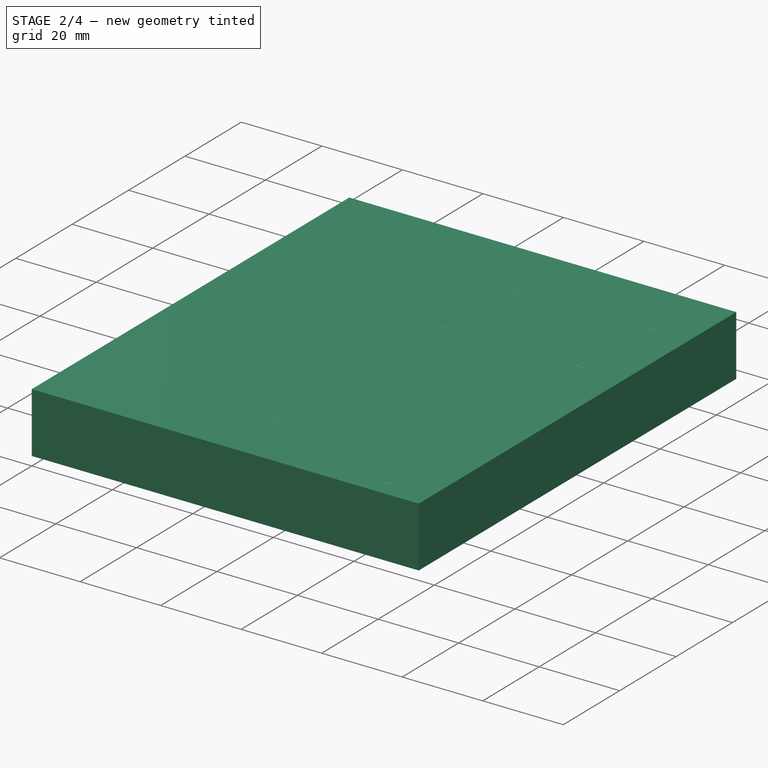
[diagram: stage 2 of 4 — iso view after this stage's code; geometry added in this stage tinted green]
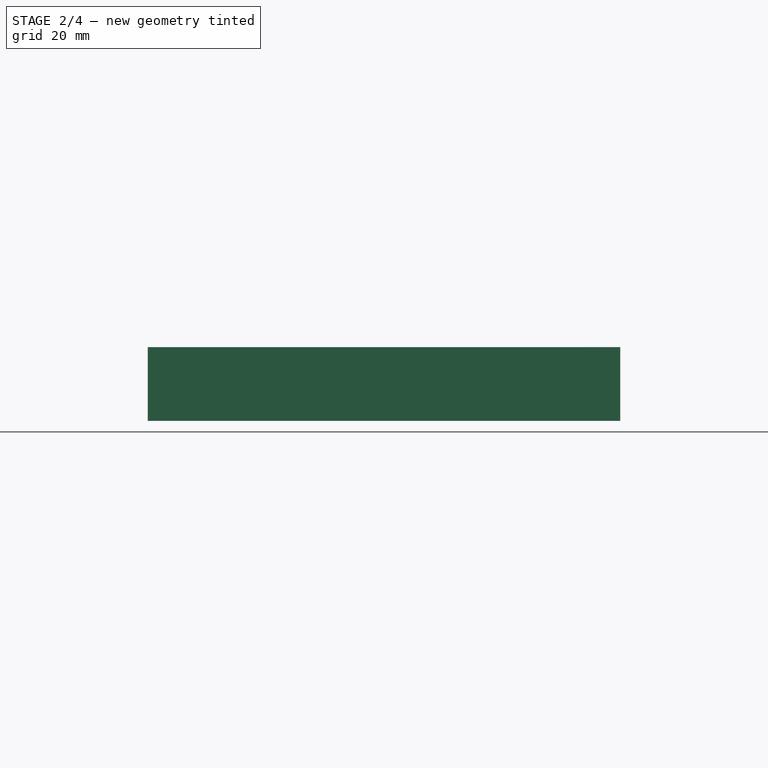
[diagram: stage 2 of 4 — front view after this stage's code; geometry added in this stage tinted green]
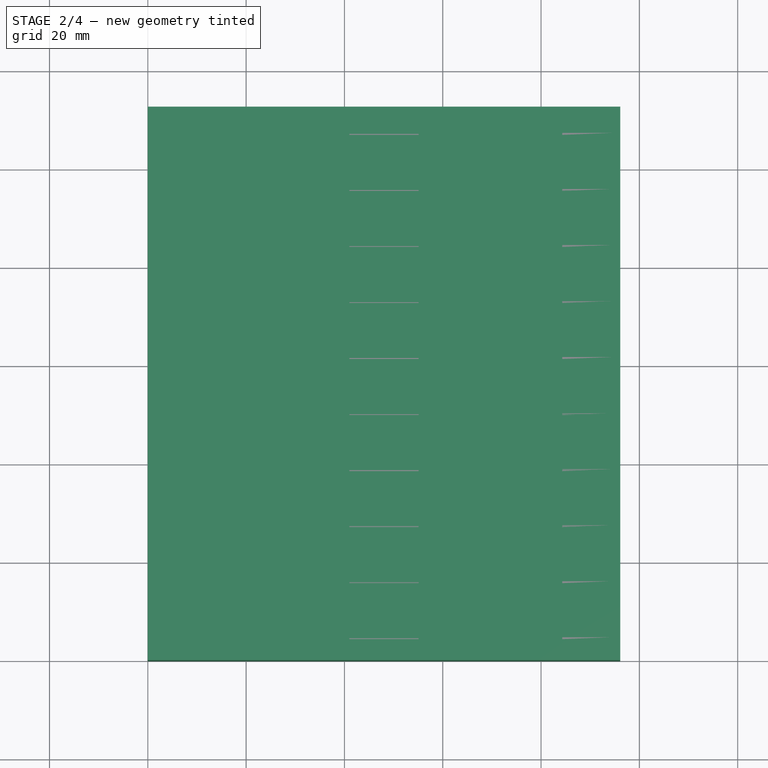
[diagram: stage 2 of 4 — top view after this stage's code; geometry added in this stage tinted green]
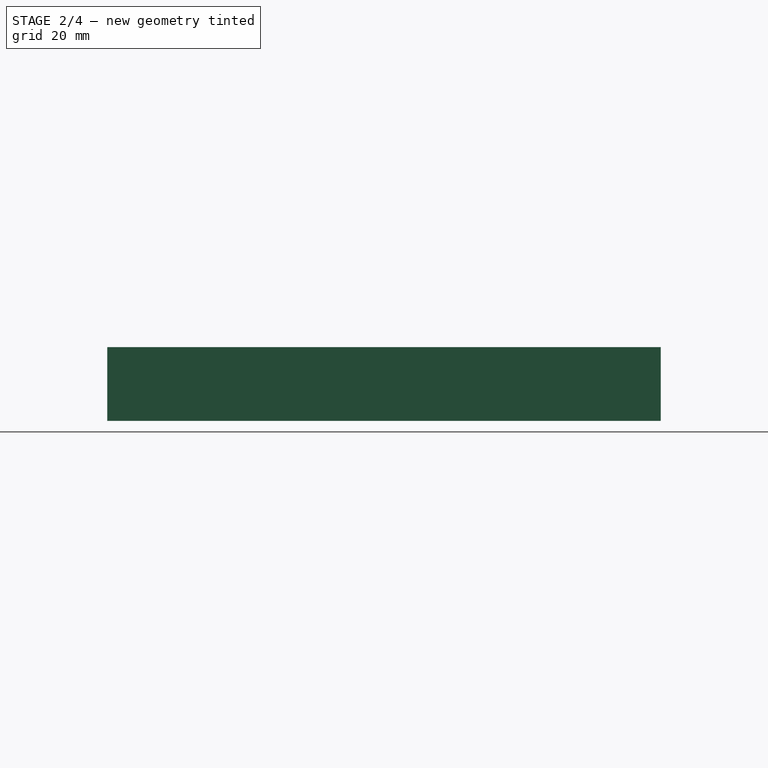
[diagram: stage 2 of 4 — right view after this stage's code; geometry added in this stage tinted green]
FEATURE [Part::Extrusion] Extrude004  label="Chamfer"
  Base = -> Sketch005
  Dir = (0,0,1)
  DirMode = 2
  FaceMakerClass = Part::FaceMakerBullseye
  LengthFwd = 5.5
  LengthRev = 0
  Solid = true
  Symmetric = false
FEATURE [Part::Extrusion] Extrude006  label="SoMSlits"
  Base = -> Sketch001
  Dir = (0,0,1)
  DirMode = 2
  FaceMakerClass = Part::FaceMakerBullseye
  LengthFwd = 9.5
  LengthRev = 0
  Reversed = true
  Solid = true
  Symmetric = false
  expr: LengthFwd = <<Box>>.LengthFwd - <<Chamfer>>.LengthFwd
FEATURE [Part::Cut] Cut001  label="BoxEdgeSlits"
  Base = -> Extrude
  Tool = -> Cut
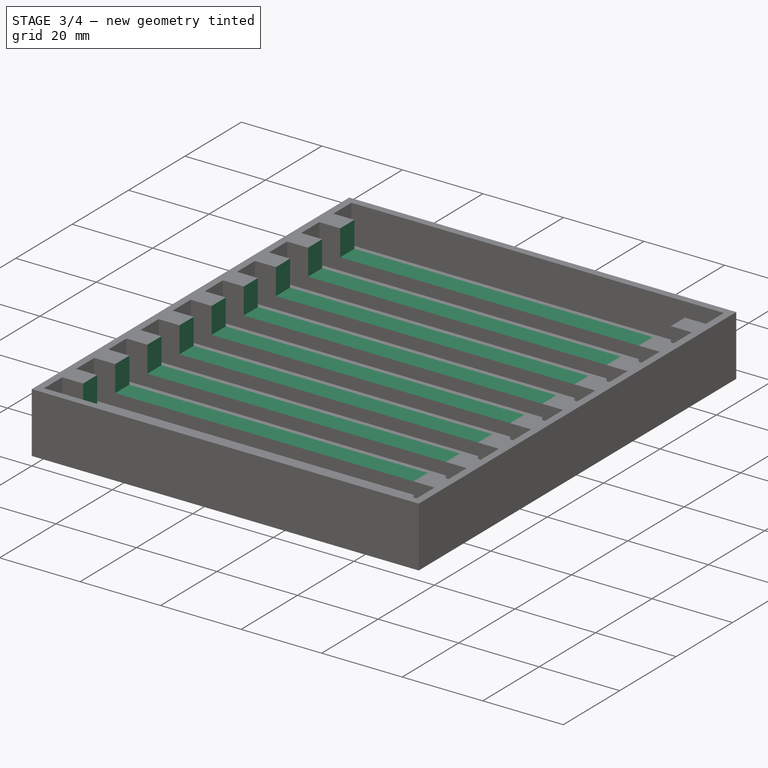
[diagram: stage 3 of 4 — iso view after this stage's code; geometry added in this stage tinted green]
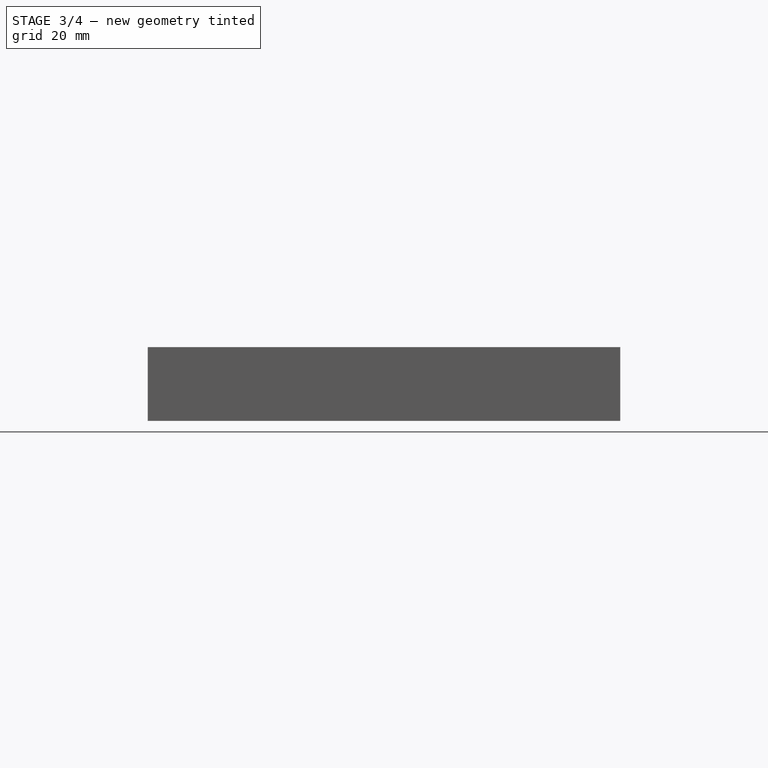
[diagram: stage 3 of 4 — front view after this stage's code; geometry added in this stage tinted green]
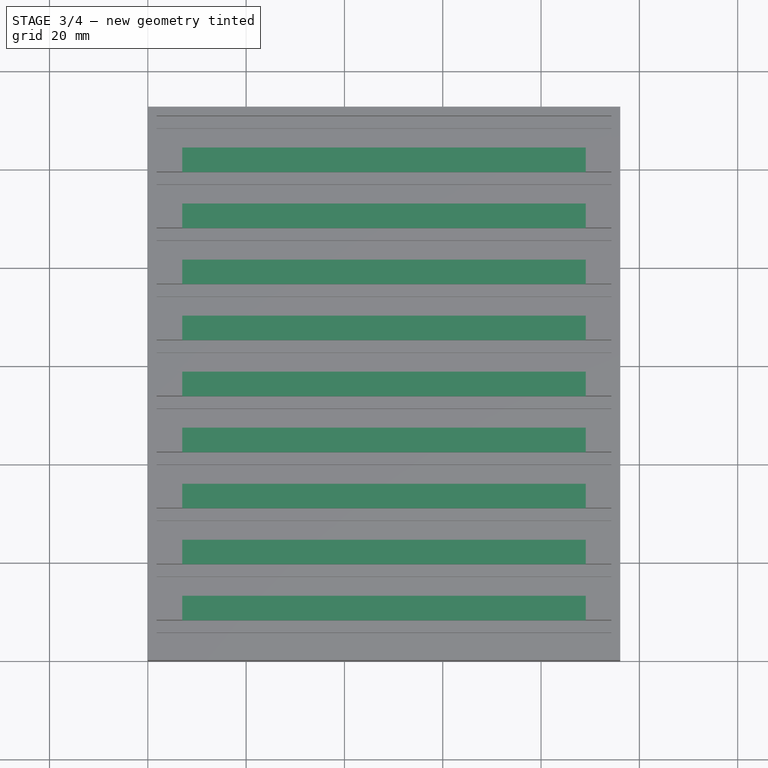
[diagram: stage 3 of 4 — top view after this stage's code; geometry added in this stage tinted green]
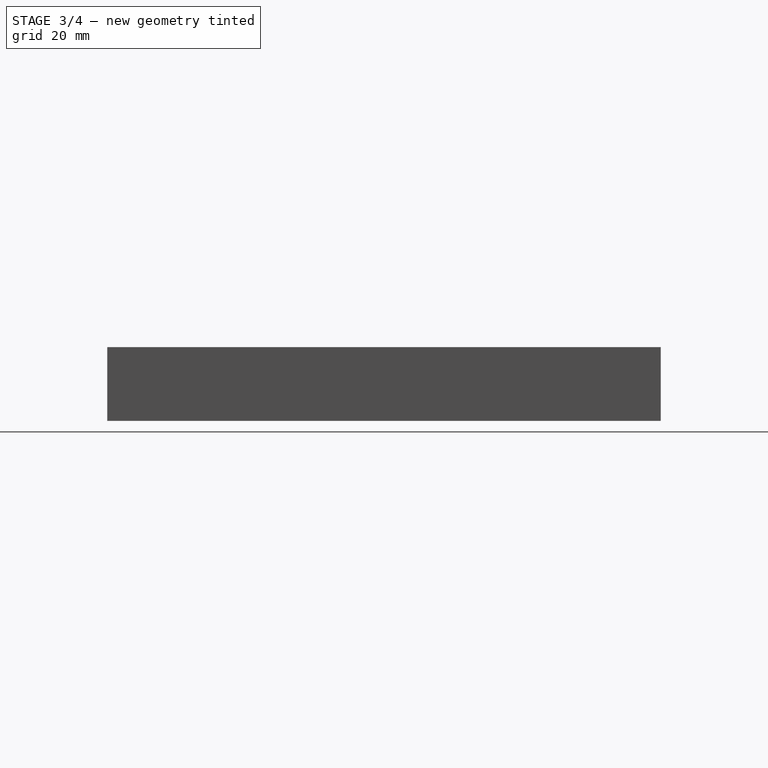
[diagram: stage 3 of 4 — right view after this stage's code; geometry added in this stage tinted green]
FEATURE [Part::Extrusion] Extrude005  label="BoxCut"
  Base = -> Sketch004
  Dir = (0,0,1)
  DirMode = 2
  FaceMakerClass = Part::FaceMakerBullseye
  LengthFwd = 6.5
  LengthRev = 0
  Reversed = true
  Solid = true
  Symmetric = false
  expr: LengthFwd = <<SoMSlits>>.LengthFwd - 3mm
FEATURE [Part::Cut] Cut002  label="BoxSoMSlits"
  Base = -> Cut001
  Tool = -> Extrude006
FEATURE [Part::Cut] Cut003  label="BoxWithACut"
  Base = -> Cut002
  Tool = -> Extrude005
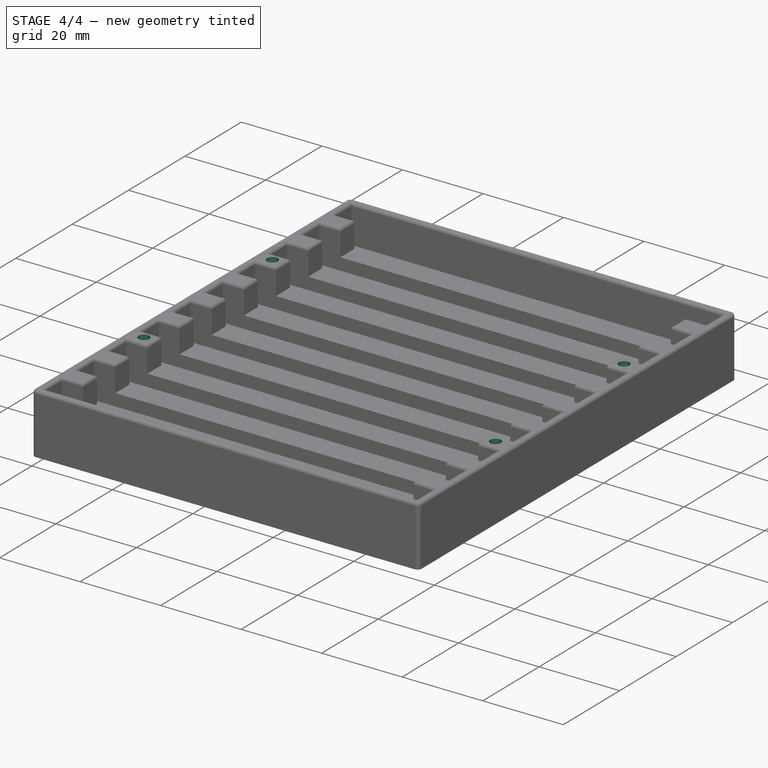
[diagram: stage 4 of 4 — iso view after this stage's code; geometry added in this stage tinted green]
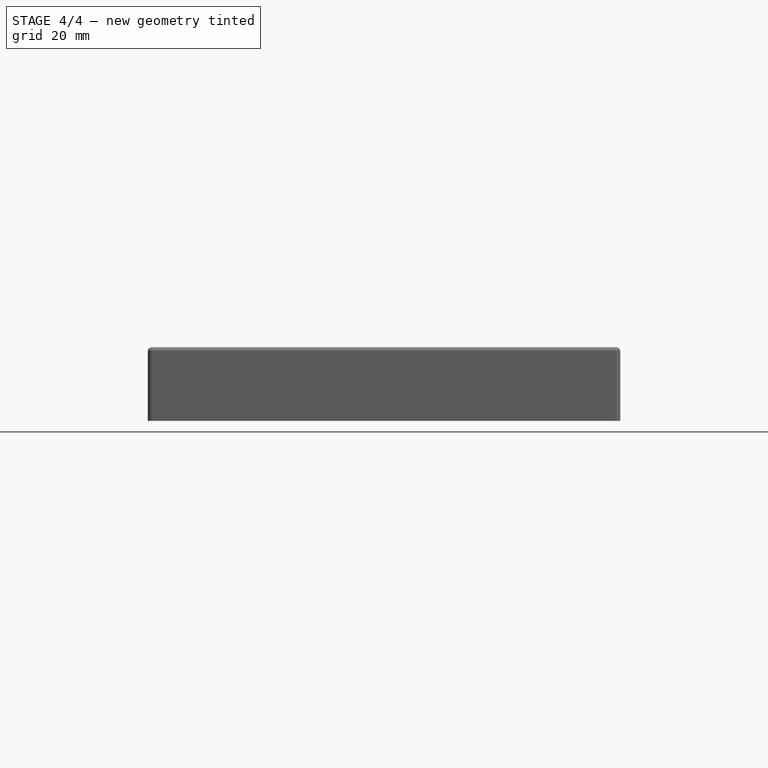
[diagram: stage 4 of 4 — front view after this stage's code; geometry added in this stage tinted green]
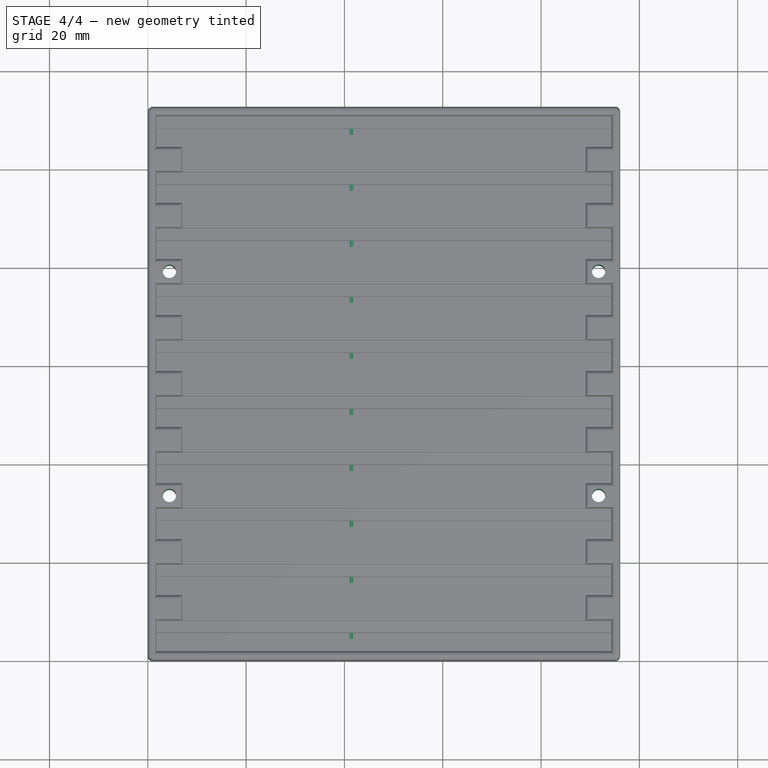
[diagram: stage 4 of 4 — top view after this stage's code; geometry added in this stage tinted green]
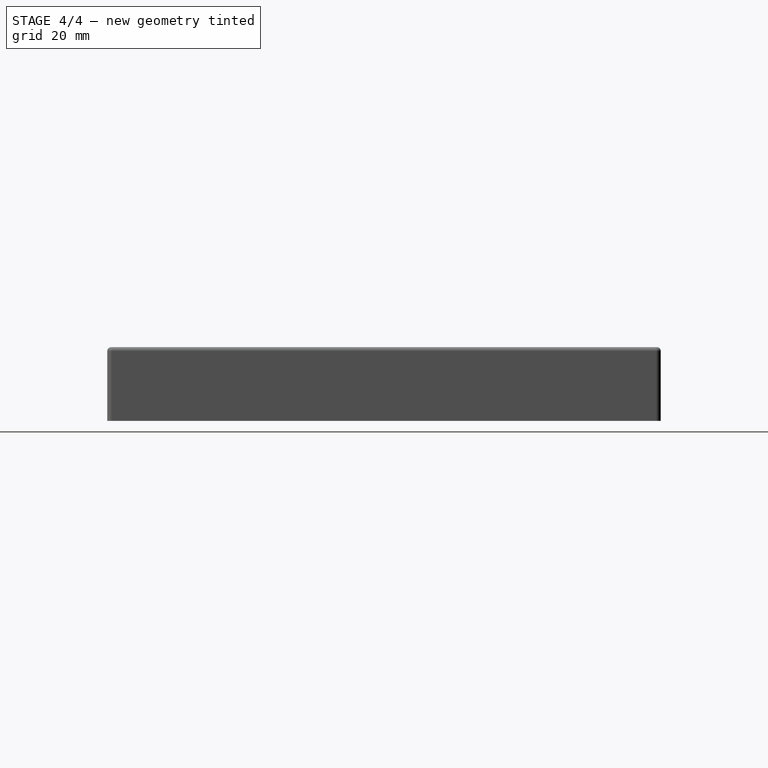
[diagram: stage 4 of 4 — right view after this stage's code; geometry added in this stage tinted green]
FEATURE [Part::Extrusion] Extrude003  label="StackHoles"
  Base = -> Sketch006
  Dir = (0,0,1)
  DirMode = 2
  FaceMakerClass = Part::FaceMakerBullseye
  LengthFwd = 15
  LengthRev = 0
  Solid = true
  Symmetric = false
  expr: LengthFwd = <<Box>>.LengthFwd
FEATURE [Part::MultiFuse] Fusion  label="BoxWithChamfer"
  Shapes = -> [Cut003,Extrude004]
FEATURE [Part::Fillet] Fillet  label="BoxSmooth"
  Base = -> Fusion
  Edges = 128 edges: [Edge9 r=1,Edge10 r=1,Edge11 r=0.8,Edge12 r=1,Edge13 r=0.8,Edge14 r=1,Edge15 r=0.8,Edge16 r=0.8,Edge17 r=0.8,Edge18 r=0.8,Edge19 r=0.8,Edge20 r=0.8,Edge21 r=0.8,Edge22 r=0.8,Edge23 r=0.8,Edge24 r=0.8,Edge25 r=0.8,Edge26 r=0.8,Edge27 r=0.8,Edge28 r=0.8,Edge29 r=0.8,Edge30 r=0.8,Edge31 r=0.8,Edge32 r=0.8,Edge33 r=0.8,Edge34 r=0.8,Edge35 r=0.8,Edge36 r=0.8,Edge37 r=0.8,Edge38 r=0.8,Edge39 r=0.8,Edge40 r=0.8,Edge41 r=0.8,Edge42 r=0.8,Edge43 r=0.8,Edge44 r=0.8,Edge45 r=0.8,Edge46 r=0.8,Edge47 r=0.8,Edge48 r=0.8,Edge49 r=0.8,Edge50 r=0.8,Edge51 r=0.8,Edge52 r=0.8,Edge53 r=0.8,Edge54 r=0.8,+82 more]
FEATURE [Part::Cut] Cut004  label="SoMHolder"
  Base = -> Fillet
  Tool = -> Extrude003
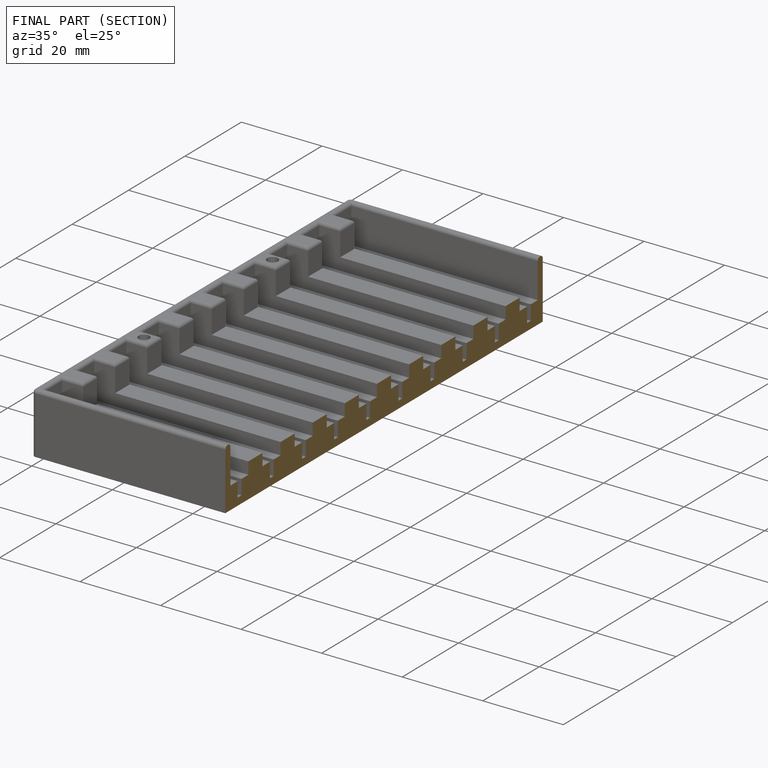
[diagram: finished part — half-section view (interior)]
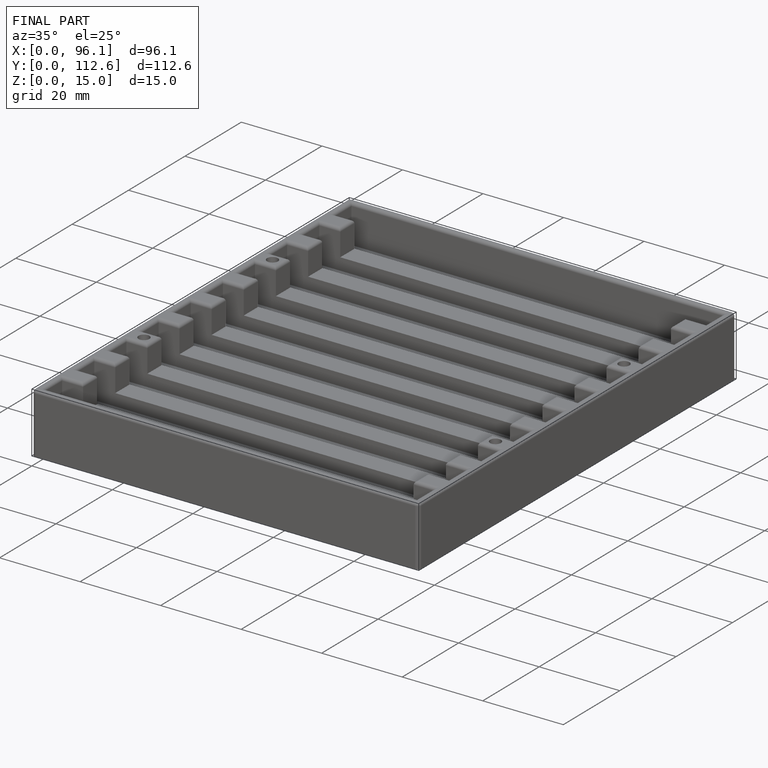
[diagram: finished part — iso view with bounding-box wireframe]
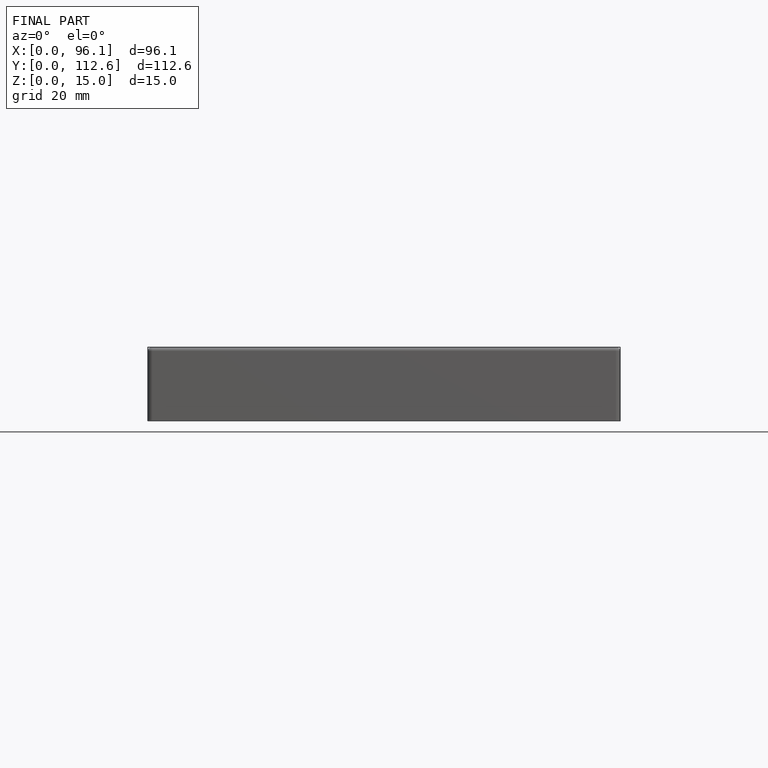
[diagram: finished part — front view with bounding-box wireframe]
